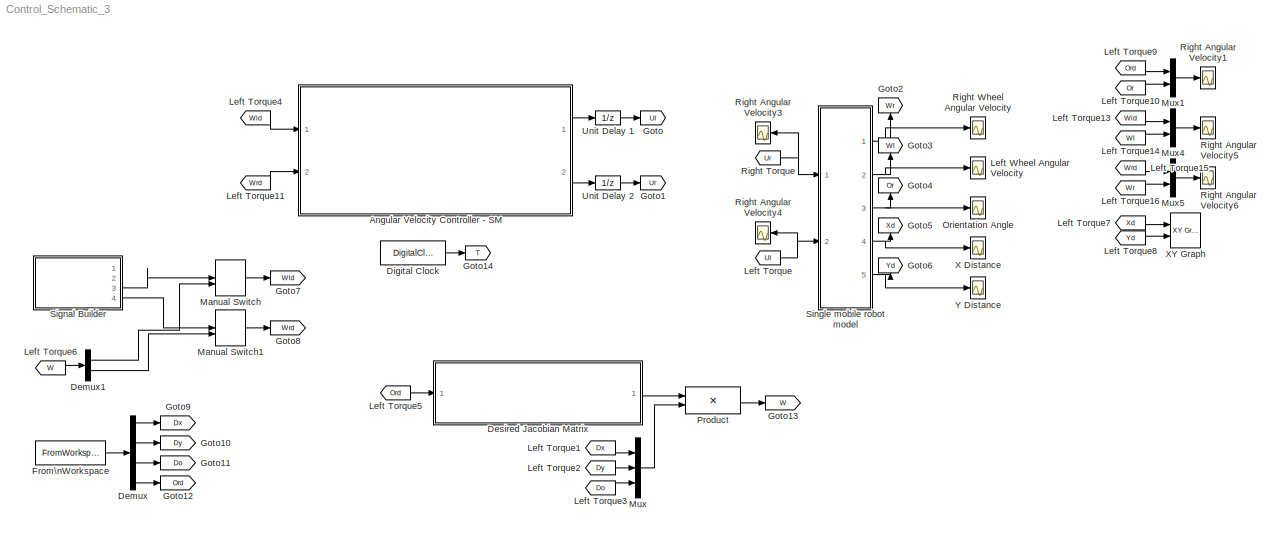
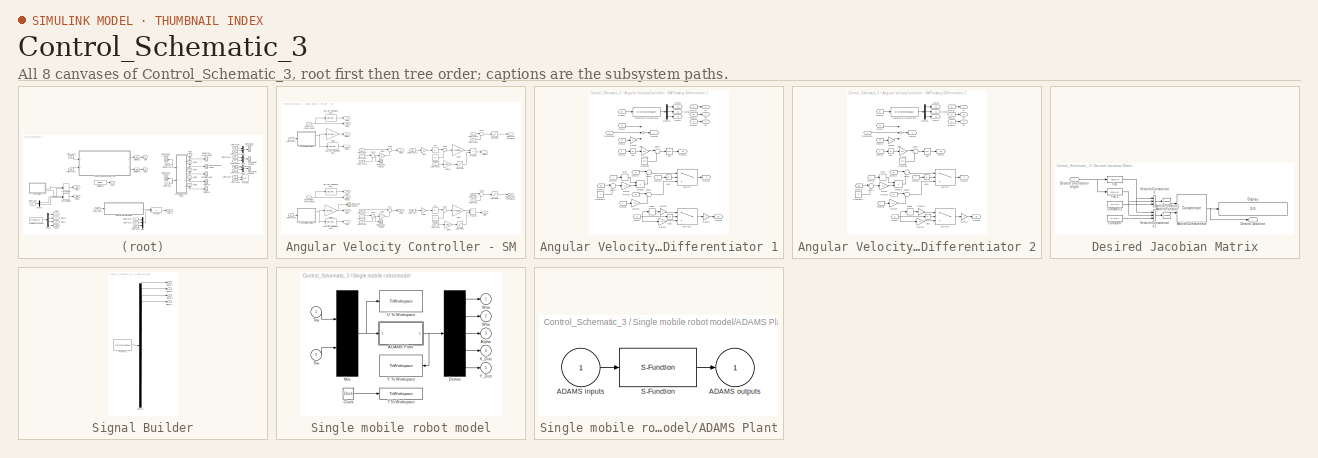
[diagram: thumbnail index - all 8 canvases of the model, root first then tree order]
MODEL Control_Schematic_3
KIND model
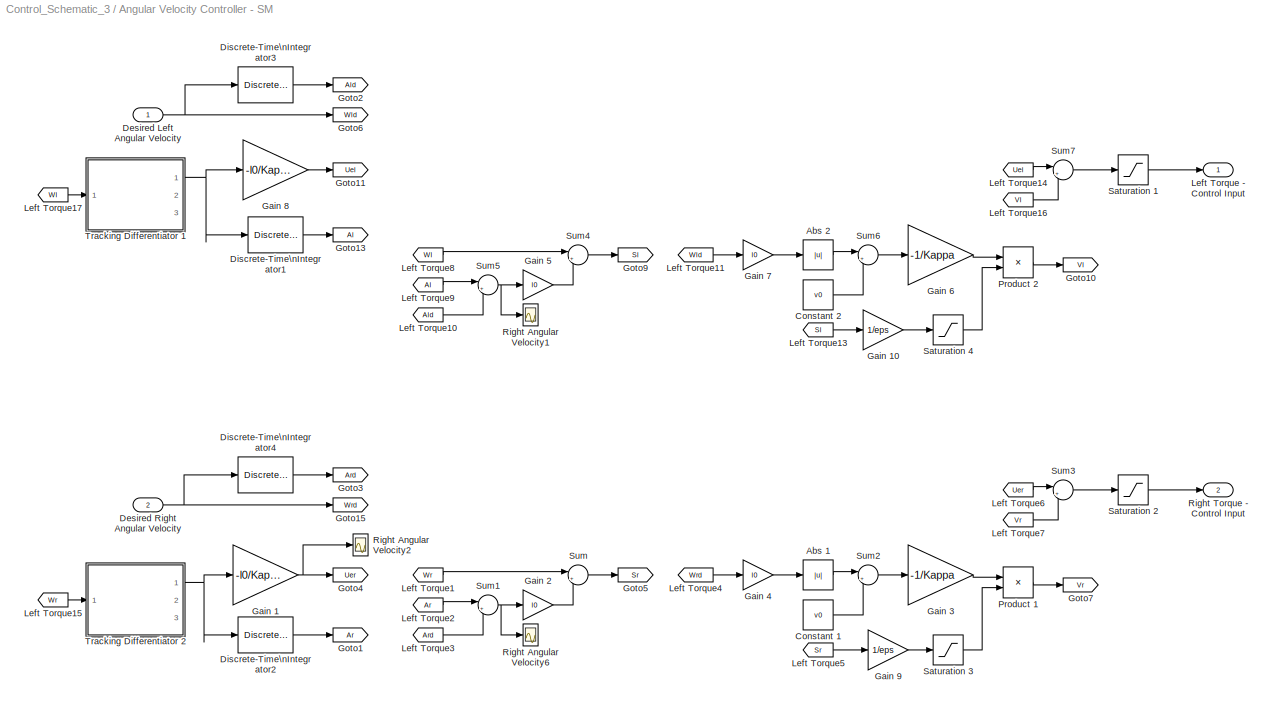
BLOCK [SubSystem] Angular Velocity Controller - SM
  Ports = [2, 2]
  RequestExecContextInheritance = off
  SID = 313
BLOCK [Abs] Angular Velocity Controller - SM/Abs 1
  SID = 868
  SaturateOnIntegerOverflow = off
BLOCK [Abs] Angular Velocity Controller - SM/Abs 2
  SID = 918
  SaturateOnIntegerOverflow = off
BLOCK [Constant] Angular Velocity Controller - SM/Constant 1
  SID = 871
  Value = v0
BLOCK [Constant] Angular Velocity Controller - SM/Constant 2
  SID = 919
  Value = v0
BLOCK [Inport] Angular Velocity Controller - SM/Desired Left Angular Velocity
  IconDisplay = Port number
  SID = 314
BLOCK [Inport] Angular Velocity Controller - SM/Desired Right Angular Velocity
  IconDisplay = Port number
  Port = 2
  SID = 315
BLOCK [DiscreteIntegrator] Angular Velocity Controller - SM/Discrete-Time\nIntegrator1
  ICPrevOutput = DiscIntNeverNeededParam
  ICPrevScaledInput = DiscIntNeverNeededParam
  IntegratorMethod = Integration: Trapezoidal
  Ports = [1, 1]
  SID = 778
  SampleTime = Ts
  gainval = 1
BLOCK [DiscreteIntegrator] Angular Velocity Controller - SM/Discrete-Time\nIntegrator2
  ICPrevOutput = DiscIntNeverNeededParam
  ICPrevScaledInput = DiscIntNeverNeededParam
  IntegratorMethod = Integration: Trapezoidal
  Ports = [1, 1]
  SID = 855
  SampleTime = Ts
  gainval = 1
BLOCK [DiscreteIntegrator] Angular Velocity Controller - SM/Discrete-Time\nIntegrator3
  ICPrevOutput = DiscIntNeverNeededParam
  ICPrevScaledInput = DiscIntNeverNeededParam
  IntegratorMethod = Integration: Trapezoidal
  Ports = [1, 1]
  SID = 782
  SampleTime = Ts
  gainval = 1
BLOCK [DiscreteIntegrator] Angular Velocity Controller - SM/Discrete-Time\nIntegrator4
  ICPrevOutput = DiscIntNeverNeededParam
  ICPrevScaledInput = DiscIntNeverNeededParam
  IntegratorMethod = Integration: Trapezoidal
  Ports = [1, 1]
  SID = 783
  SampleTime = Ts
  gainval = 1
BLOCK [Gain] Angular Velocity Controller - SM/Gain 1
  Gain = -l0/Kappa
  OutDataTypeStr = Inherit: Inherit via internal rule
  ParamDataTypeStr = Inherit: Inherit via internal rule
  SID = 854
  SaturateOnIntegerOverflow = off
BLOCK [Gain] Angular Velocity Controller - SM/Gain 10
  Gain = 1/eps
  OutDataTypeStr = Inherit: Inherit via internal rule
  ParamDataTypeStr = Inherit: Inherit via internal rule
  SID = 950
  SaturateOnIntegerOverflow = off
BLOCK [Gain] Angular Velocity Controller - SM/Gain 2
  Gain = l0
  OutDataTypeStr = Inherit: Inherit via internal rule
  ParamDataTypeStr = Inherit: Inherit via internal rule
  SID = 863
  SaturateOnIntegerOverflow = off
BLOCK [Gain] Angular Velocity Controller - SM/Gain 3
  Gain = -1/Kappa
  OutDataTypeStr = Inherit: Inherit via internal rule
  ParamDataTypeStr = Inherit: Inherit via internal rule
  SID = 865
  SaturateOnIntegerOverflow = off
BLOCK [Gain] Angular Velocity Controller - SM/Gain 4
  Gain = l0
  OutDataTypeStr = Inherit: Inherit via internal rule
  ParamDataTypeStr = Inherit: Inherit via internal rule
  SID = 869
  SaturateOnIntegerOverflow = off
BLOCK [Gain] Angular Velocity Controller - SM/Gain 5
  Gain = l0
  OutDataTypeStr = Inherit: Inherit via internal rule
  ParamDataTypeStr = Inherit: Inherit via internal rule
  SID = 920
  SaturateOnIntegerOverflow = off
BLOCK [Gain] Angular Velocity Controller - SM/Gain 6
  Gain = -1/Kappa
  OutDataTypeStr = Inherit: Inherit via internal rule
  ParamDataTypeStr = Inherit: Inherit via internal rule
  SID = 921
  SaturateOnIntegerOverflow = off
BLOCK [Gain] Angular Velocity Controller - SM/Gain 7
  Gain = l0
  OutDataTypeStr = Inherit: Inherit via internal rule
  ParamDataTypeStr = Inherit: Inherit via internal rule
  SID = 922
  SaturateOnIntegerOverflow = off
BLOCK [Gain] Angular Velocity Controller - SM/Gain 8
  Gain = -l0/Kappa
  OutDataTypeStr = Inherit: Inherit via internal rule
  ParamDataTypeStr = Inherit: Inherit via internal rule
  SID = 938
  SaturateOnIntegerOverflow = off
BLOCK [Gain] Angular Velocity Controller - SM/Gain 9
  Gain = 1/eps
  OutDataTypeStr = Inherit: Inherit via internal rule
  ParamDataTypeStr = Inherit: Inherit via internal rule
  SID = 947
  SaturateOnIntegerOverflow = off
BLOCK [Goto] Angular Velocity Controller - SM/Goto1
  GotoTag = Ar
  SID = 856
  TagVisibility = global
BLOCK [Goto] Angular Velocity Controller - SM/Goto10
  GotoTag = Vl
  SID = 924
  TagVisibility = global
BLOCK [Goto] Angular Velocity Controller - SM/Goto11
  GotoTag = Uel
  SID = 939
  TagVisibility = global
BLOCK [Goto] Angular Velocity Controller - SM/Goto13
  GotoTag = Al
  SID = 780
  TagVisibility = global
BLOCK [Goto] Angular Velocity Controller - SM/Goto15
  GotoTag = Wrd
  SID = 952
BLOCK [Goto] Angular Velocity Controller - SM/Goto2
  GotoTag = Ald
  SID = 784
  TagVisibility = global
BLOCK [Goto] Angular Velocity Controller - SM/Goto3
  GotoTag = Ard
  SID = 785
  TagVisibility = global
BLOCK [Goto] Angular Velocity Controller - SM/Goto4
  GotoTag = Uer
  SID = 857
  TagVisibility = global
BLOCK [Goto] Angular Velocity Controller - SM/Goto5
  GotoTag = Sr
  SID = 864
  TagVisibility = global
BLOCK [Goto] Angular Velocity Controller - SM/Goto6
  GotoTag = Wld
  SID = 953
BLOCK [Goto] Angular Velocity Controller - SM/Goto7
  GotoTag = Vr
  SID = 875
  TagVisibility = global
BLOCK [Goto] Angular Velocity Controller - SM/Goto9
  GotoTag = Sl
  SID = 923
  TagVisibility = global
BLOCK [Outport] Angular Velocity Controller - SM/Left Torque - Control Input
  IconDisplay = Port number
  SID = 317
BLOCK [From] Angular Velocity Controller - SM/Left Torque1
  GotoTag = Wr
  SID = 858
  TagVisibility = global
BLOCK [From] Angular Velocity Controller - SM/Left Torque10
  GotoTag = Ald
  SID = 927
  TagVisibility = global
BLOCK [From] Angular Velocity Controller - SM/Left Torque11
  GotoTag = Wld
  SID = 928
BLOCK [From] Angular Velocity Controller - SM/Left Torque13
  GotoTag = Sl
  SID = 929
  TagVisibility = global
BLOCK [From] Angular Velocity Controller - SM/Left Torque14
  GotoTag = Uel
  SID = 930
  TagVisibility = global
BLOCK [From] Angular Velocity Controller - SM/Left Torque15
  GotoTag = Wr
  SID = 955
  TagVisibility = global
BLOCK [From] Angular Velocity Controller - SM/Left Torque16
  GotoTag = Vl
  SID = 931
  TagVisibility = global
BLOCK [From] Angular Velocity Controller - SM/Left Torque17
  GotoTag = Wl
  SID = 954
  TagVisibility = global
BLOCK [From] Angular Velocity Controller - SM/Left Torque2
  GotoTag = Ar
  SID = 860
  TagVisibility = global
BLOCK [From] Angular Velocity Controller - SM/Left Torque3
  GotoTag = Ard
  SID = 862
  TagVisibility = global
BLOCK [From] Angular Velocity Controller - SM/Left Torque4
  GotoTag = Wrd
  SID = 867
BLOCK [From] Angular Velocity Controller - SM/Left Torque5
  GotoTag = Sr
  SID = 872
  TagVisibility = global
BLOCK [From] Angular Velocity Controller - SM/Left Torque6
  GotoTag = Uer
  SID = 877
  TagVisibility = global
BLOCK [From] Angular Velocity Controller - SM/Left Torque7
  GotoTag = Vr
  SID = 878
  TagVisibility = global
BLOCK [From] Angular Velocity Controller - SM/Left Torque8
  GotoTag = Wl
  SID = 925
  TagVisibility = global
BLOCK [From] Angular Velocity Controller - SM/Left Torque9
  GotoTag = Al
  SID = 926
  TagVisibility = global
BLOCK [Product] Angular Velocity Controller - SM/Product 1
  InputSameDT = off
  OutDataTypeStr = Inherit: Inherit via internal rule
  Ports = [2, 1]
  RndMeth = Floor
  SID = 874
  SaturateOnIntegerOverflow = off
BLOCK [Product] Angular Velocity Controller - SM/Product 2
  InputSameDT = off
  OutDataTypeStr = Inherit: Inherit via internal rule
  Ports = [2, 1]
  RndMeth = Floor
  SID = 932
  SaturateOnIntegerOverflow = off
BLOCK [Scope] Angular Velocity Controller - SM/Right Angular Velocity1
  Floating = off
  LimitDataPoints = off
  NumInputPorts = 1
  Ports = [1]
  SID = 945
  SaveName = ScopeData6
  ShowLegends = off
  YMax = 1
  YMin = -1
BLOCK [Scope] Angular Velocity Controller - SM/Right Angular Velocity2
  Floating = off
  LimitDataPoints = off
  NumInputPorts = 1
  Ports = [1]
  SID = 956
  SaveName = ScopeData11
  ShowLegends = off
  YMax = 1
  YMin = -1
BLOCK [Scope] Angular Velocity Controller - SM/Right Angular Velocity6
  Floating = off
  LimitDataPoints = off
  NumInputPorts = 1
  Ports = [1]
  SID = 944
  SaveName = ScopeData5
  ShowLegends = off
  YMax = 1
  YMin = -1
BLOCK [Outport] Angular Velocity Controller - SM/Right Torque - Control Input
  IconDisplay = Port number
  Port = 2
  SID = 319
BLOCK [Saturate] Angular Velocity Controller - SM/Saturation 1
  InputPortMap = u0
  LowerLimit = -20
  Ports = [1, 1]
  SID = 942
  UpperLimit = 20
BLOCK [Saturate] Angular Velocity Controller - SM/Saturation 2
  InputPortMap = u0
  LowerLimit = -20
  Ports = [1, 1]
  SID = 943
  UpperLimit = 20
BLOCK [Saturate] Angular Velocity Controller - SM/Saturation 3
  InputPortMap = u0
  LowerLimit = -1
  Ports = [1, 1]
  SID = 949
  UpperLimit = 1
BLOCK [Saturate] Angular Velocity Controller - SM/Saturation 4
  InputPortMap = u0
  LowerLimit = -1
  Ports = [1, 1]
  SID = 951
  UpperLimit = 1
BLOCK [Sum] Angular Velocity Controller - SM/Sum
  IconShape = round
  InputSameDT = off
  Inputs = |++
  OutDataTypeStr = Inherit: Inherit via internal rule
  Ports = [2, 1]
  SID = 859
  SaturateOnIntegerOverflow = off
BLOCK [Sum] Angular Velocity Controller - SM/Sum1
  IconShape = round
  InputSameDT = off
  Inputs = |+-
  OutDataTypeStr = Inherit: Inherit via internal rule
  Ports = [2, 1]
  SID = 861
  SaturateOnIntegerOverflow = off
BLOCK [Sum] Angular Velocity Controller - SM/Sum2
  IconShape = round
  InputSameDT = off
  Inputs = |++
  OutDataTypeStr = Inherit: Inherit via internal rule
  Ports = [2, 1]
  SID = 870
  SaturateOnIntegerOverflow = off
BLOCK [Sum] Angular Velocity Controller - SM/Sum3
  IconShape = round
  InputSameDT = off
  Inputs = |++
  OutDataTypeStr = Inherit: Inherit via internal rule
  Ports = [2, 1]
  SID = 876
  SaturateOnIntegerOverflow = off
BLOCK [Sum] Angular Velocity Controller - SM/Sum4
  IconShape = round
  InputSameDT = off
  Inputs = |++
  OutDataTypeStr = Inherit: Inherit via internal rule
  Ports = [2, 1]
  SID = 934
  SaturateOnIntegerOverflow = off
BLOCK [Sum] Angular Velocity Controller - SM/Sum5
  IconShape = round
  InputSameDT = off
  Inputs = |+-
  OutDataTypeStr = Inherit: Inherit via internal rule
  Ports = [2, 1]
  SID = 935
  SaturateOnIntegerOverflow = off
BLOCK [Sum] Angular Velocity Controller - SM/Sum6
  IconShape = round
  InputSameDT = off
  Inputs = |++
  OutDataTypeStr = Inherit: Inherit via internal rule
  Ports = [2, 1]
  SID = 936
  SaturateOnIntegerOverflow = off
BLOCK [Sum] Angular Velocity Controller - SM/Sum7
  IconShape = round
  InputSameDT = off
  Inputs = |++
  OutDataTypeStr = Inherit: Inherit via internal rule
  Ports = [2, 1]
  SID = 937
  SaturateOnIntegerOverflow = off
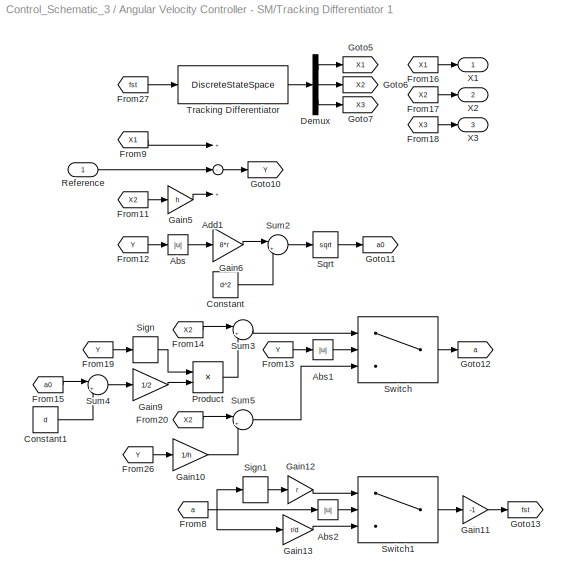
BLOCK [SubSystem] Angular Velocity Controller - SM/Tracking Differentiator 1
  Ports = [1, 3]
  RequestExecContextInheritance = off
  SID = 47
BLOCK [Abs] Angular Velocity Controller - SM/Tracking Differentiator 1/Abs
  SID = 49
  SaturateOnIntegerOverflow = off
BLOCK [Abs] Angular Velocity Controller - SM/Tracking Differentiator 1/Abs1
  SID = 50
  SaturateOnIntegerOverflow = off
BLOCK [Abs] Angular Velocity Controller - SM/Tracking Differentiator 1/Abs2
  SID = 51
  SaturateOnIntegerOverflow = off
BLOCK [Sum] Angular Velocity Controller - SM/Tracking Differentiator 1/Add1
  InputSameDT = off
  Inputs = +-+
  OutDataTypeStr = Inherit: Inherit via internal rule
  Ports = [3, 1]
  SID = 52
  SaturateOnIntegerOverflow = off
BLOCK [Constant] Angular Velocity Controller - SM/Tracking Differentiator 1/Constant
  SID = 53
  Value = d^2
BLOCK [Constant] Angular Velocity Controller - SM/Tracking Differentiator 1/Constant1
  SID = 54
  Value = d
BLOCK [Demux] Angular Velocity Controller - SM/Tracking Differentiator 1/Demux
  DisplayOption = bar
  Outputs = 3
  Ports = [1, 3]
  SID = 55
BLOCK [From] Angular Velocity Controller - SM/Tracking Differentiator 1/From11
  GotoTag = X2
  SID = 56
BLOCK [From] Angular Velocity Controller - SM/Tracking Differentiator 1/From12
  GotoTag = Y
  SID = 57
BLOCK [From] Angular Velocity Controller - SM/Tracking Differentiator 1/From13
  GotoTag = Y
  SID = 58
BLOCK [From] Angular Velocity Controller - SM/Tracking Differentiator 1/From14
  GotoTag = X2
  SID = 59
BLOCK [From] Angular Velocity Controller - SM/Tracking Differentiator 1/From15
  GotoTag = a0
  SID = 60
BLOCK [From] Angular Velocity Controller - SM/Tracking Differentiator 1/From16
  GotoTag = X1
  SID = 61
BLOCK [From] Angular Velocity Controller - SM/Tracking Differentiator 1/From17
  GotoTag = X2
  SID = 62
BLOCK [From] Angular Velocity Controller - SM/Tracking Differentiator 1/From18
  GotoTag = X3
  SID = 63
BLOCK [From] Angular Velocity Controller - SM/Tracking Differentiator 1/From19
  GotoTag = Y
  SID = 64
BLOCK [From] Angular Velocity Controller - SM/Tracking Differentiator 1/From20
  GotoTag = X2
  SID = 65
BLOCK [From] Angular Velocity Controller - SM/Tracking Differentiator 1/From26
  GotoTag = Y
  SID = 66
BLOCK [From] Angular Velocity Controller - SM/Tracking Differentiator 1/From27
  GotoTag = fst
  SID = 67
BLOCK [From] Angular Velocity Controller - SM/Tracking Differentiator 1/From8
  GotoTag = a
  SID = 68
BLOCK [From] Angular Velocity Controller - SM/Tracking Differentiator 1/From9
  GotoTag = X1
  SID = 69
BLOCK [Gain] Angular Velocity Controller - SM/Tracking Differentiator 1/Gain10
  Gain = 1/h
  OutDataTypeStr = Inherit: Inherit via internal rule
  ParamDataTypeStr = Inherit: Inherit via internal rule
  SID = 70
  SaturateOnIntegerOverflow = off
BLOCK [Gain] Angular Velocity Controller - SM/Tracking Differentiator 1/Gain11
  Gain = -1
  OutDataTypeStr = Inherit: Inherit via internal rule
  ParamDataTypeStr = Inherit: Inherit via internal rule
  SID = 71
  SaturateOnIntegerOverflow = off
BLOCK [Gain] Angular Velocity Controller - SM/Tracking Differentiator 1/Gain12
  Gain = r
  OutDataTypeStr = Inherit: Inherit via internal rule
  ParamDataTypeStr = Inherit: Inherit via internal rule
  SID = 72
  SaturateOnIntegerOverflow = off
BLOCK [Gain] Angular Velocity Controller - SM/Tracking Differentiator 1/Gain13
  Gain = r/d
  OutDataTypeStr = Inherit: Inherit via internal rule
  ParamDataTypeStr = Inherit: Inherit via internal rule
  SID = 73
  SaturateOnIntegerOverflow = off
BLOCK [Gain] Angular Velocity Controller - SM/Tracking Differentiator 1/Gain5
  Gain = h
  OutDataTypeStr = Inherit: Inherit via internal rule
  ParamDataTypeStr = Inherit: Inherit via internal rule
  SID = 74
  SaturateOnIntegerOverflow = off
BLOCK [Gain] Angular Velocity Controller - SM/Tracking Differentiator 1/Gain6
  Gain = 8*r
  OutDataTypeStr = Inherit: Inherit via internal rule
  ParamDataTypeStr = Inherit: Inherit via internal rule
  SID = 75
  SaturateOnIntegerOverflow = off
BLOCK [Gain] Angular Velocity Controller - SM/Tracking Differentiator 1/Gain9
  Gain = 1/2
  OutDataTypeStr = Inherit: Inherit via internal rule
  ParamDataTypeStr = Inherit: Inherit via internal rule
  SID = 76
  SaturateOnIntegerOverflow = off
BLOCK [Goto] Angular Velocity Controller - SM/Tracking Differentiator 1/Goto10
  GotoTag = Y
  SID = 77
BLOCK [Goto] Angular Velocity Controller - SM/Tracking Differentiator 1/Goto11
  GotoTag = a0
  SID = 78
BLOCK [Goto] Angular Velocity Controller - SM/Tracking Differentiator 1/Goto12
  GotoTag = a
  SID = 79
BLOCK [Goto] Angular Velocity Controller - SM/Tracking Differentiator 1/Goto13
  GotoTag = fst
  SID = 80
BLOCK [Goto] Angular Velocity Controller - SM/Tracking Differentiator 1/Goto5
  GotoTag = X1
  SID = 81
BLOCK [Goto] Angular Velocity Controller - SM/Tracking Differentiator 1/Goto6
  GotoTag = X2
  SID = 82
BLOCK [Goto] Angular Velocity Controller - SM/Tracking Differentiator 1/Goto7
  GotoTag = X3
  SID = 83
BLOCK [Product] Angular Velocity Controller - SM/Tracking Differentiator 1/Product
  InputSameDT = off
  OutDataTypeStr = Inherit: Inherit via internal rule
  Ports = [2, 1]
  RndMeth = Floor
  SID = 84
  SaturateOnIntegerOverflow = off
BLOCK [Inport] Angular Velocity Controller - SM/Tracking Differentiator 1/Reference
  IconDisplay = Port number
  SID = 48
BLOCK [Signum] Angular Velocity Controller - SM/Tracking Differentiator 1/Sign
  SID = 85
BLOCK [Signum] Angular Velocity Controller - SM/Tracking Differentiator 1/Sign1
  SID = 86
BLOCK [Sqrt] Angular Velocity Controller - SM/Tracking Differentiator 1/Sqrt
  SID = 87
BLOCK [Sum] Angular Velocity Controller - SM/Tracking Differentiator 1/Sum2
  IconShape = round
  InputSameDT = off
  Inputs = |++
  OutDataTypeStr = Inherit: Inherit via internal rule
  Ports = [2, 1]
  SID = 88
  SaturateOnIntegerOverflow = off
BLOCK [Sum] Angular Velocity Controller - SM/Tracking Differentiator 1/Sum3
  IconShape = round
  InputSameDT = off
  Inputs = |++
  OutDataTypeStr = Inherit: Inherit via internal rule
  Ports = [2, 1]
  SID = 89
  SaturateOnIntegerOverflow = off
BLOCK [Sum] Angular Velocity Controller - SM/Tracking Differentiator 1/Sum4
  IconShape = round
  InputSameDT = off
  Inputs = |+-
  OutDataTypeStr = Inherit: Inherit via internal rule
  Ports = [2, 1]
  SID = 90
  SaturateOnIntegerOverflow = off
BLOCK [Sum] Angular Velocity Controller - SM/Tracking Differentiator 1/Sum5
  IconShape = round
  InputSameDT = off
  Inputs = |++
  OutDataTypeStr = Inherit: Inherit via internal rule
  Ports = [2, 1]
  SID = 91
  SaturateOnIntegerOverflow = off
BLOCK [Switch] Angular Velocity Controller - SM/Tracking Differentiator 1/Switch
  Criteria = u2 > Threshold
  InputSameDT = off
  SID = 92
  SaturateOnIntegerOverflow = off
  Threshold = d0
BLOCK [Switch] Angular Velocity Controller - SM/Tracking Differentiator 1/Switch1
  Criteria = u2 > Threshold
  InputSameDT = off
  SID = 93
  SaturateOnIntegerOverflow = off
  Threshold = d
BLOCK [DiscreteStateSpace] Angular Velocity Controller - SM/Tracking Differentiator 1/Tracking Differentiator
  A = TD.a
  B = TD.b
  C = TD.c
  D = TD.d
  SID = 94
  SampleTime = Ts
BLOCK [Outport] Angular Velocity Controller - SM/Tracking Differentiator 1/X1
  IconDisplay = Port number
  SID = 95
BLOCK [Outport] Angular Velocity Controller - SM/Tracking Differentiator 1/X2
  IconDisplay = Port number
  Port = 2
  SID = 96
BLOCK [Outport] Angular Velocity Controller - SM/Tracking Differentiator 1/X3
  IconDisplay = Port number
  Port = 3
  SID = 97
BLOCK [SubSystem] Angular Velocity Controller - SM/Tracking Differentiator 2
  Ports = [1, 3]
  RequestExecContextInheritance = off
  SID = 186
BLOCK [Abs] Angular Velocity Controller - SM/Tracking Differentiator 2/Abs
  SID = 188
  SaturateOnIntegerOverflow = off
BLOCK [Abs] Angular Velocity Controller - SM/Tracking Differentiator 2/Abs1
  SID = 189
  SaturateOnIntegerOverflow = off
BLOCK [Abs] Angular Velocity Controller - SM/Tracking Differentiator 2/Abs2
  SID = 190
  SaturateOnIntegerOverflow = off
BLOCK [Sum] Angular Velocity Controller - SM/Tracking Differentiator 2/Add1
  InputSameDT = off
  Inputs = +-+
  OutDataTypeStr = Inherit: Inherit via internal rule
  Ports = [3, 1]
  SID = 191
  SaturateOnIntegerOverflow = off
BLOCK [Constant] Angular Velocity Controller - SM/Tracking Differentiator 2/Constant
  SID = 192
  Value = d^2
BLOCK [Constant] Angular Velocity Controller - SM/Tracking Differentiator 2/Constant1
  SID = 193
  Value = d
BLOCK [Demux] Angular Velocity Controller - SM/Tracking Differentiator 2/Demux
  DisplayOption = bar
  Outputs = 3
  Ports = [1, 3]
  SID = 194
BLOCK [From] Angular Velocity Controller - SM/Tracking Differentiator 2/From11
  GotoTag = X2
  SID = 195
BLOCK [From] Angular Velocity Controller - SM/Tracking Differentiator 2/From12
  GotoTag = Y
  SID = 196
BLOCK [From] Angular Velocity Controller - SM/Tracking Differentiator 2/From13
  GotoTag = Y
  SID = 197
BLOCK [From] Angular Velocity Controller - SM/Tracking Differentiator 2/From14
  GotoTag = X2
  SID = 198
BLOCK [From] Angular Velocity Controller - SM/Tracking Differentiator 2/From15
  GotoTag = a0
  SID = 199
BLOCK [From] Angular Velocity Controller - SM/Tracking Differentiator 2/From16
  GotoTag = X1
  SID = 200
BLOCK [From] Angular Velocity Controller - SM/Tracking Differentiator 2/From17
  GotoTag = X2
  SID = 201
BLOCK [From] Angular Velocity Controller - SM/Tracking Differentiator 2/From18
  GotoTag = X3
  SID = 202
BLOCK [From] Angular Velocity Controller - SM/Tracking Differentiator 2/From19
  GotoTag = Y
  SID = 203
BLOCK [From] Angular Velocity Controller - SM/Tracking Differentiator 2/From20
  GotoTag = X2
  SID = 204
BLOCK [From] Angular Velocity Controller - SM/Tracking Differentiator 2/From26
  GotoTag = Y
  SID = 205
BLOCK [From] Angular Velocity Controller - SM/Tracking Differentiator 2/From27
  GotoTag = fst
  SID = 206
BLOCK [From] Angular Velocity Controller - SM/Tracking Differentiator 2/From8
  GotoTag = a
  SID = 207
BLOCK [From] Angular Velocity Controller - SM/Tracking Differentiator 2/From9
  GotoTag = X1
  SID = 208
BLOCK [Gain] Angular Velocity Controller - SM/Tracking Differentiator 2/Gain10
  Gain = 1/h
  OutDataTypeStr = Inherit: Inherit via internal rule
  ParamDataTypeStr = Inherit: Inherit via internal rule
  SID = 209
  SaturateOnIntegerOverflow = off
BLOCK [Gain] Angular Velocity Controller - SM/Tracking Differentiator 2/Gain11
  Gain = -1
  OutDataTypeStr = Inherit: Inherit via internal rule
  ParamDataTypeStr = Inherit: Inherit via internal rule
  SID = 210
  SaturateOnIntegerOverflow = off
BLOCK [Gain] Angular Velocity Controller - SM/Tracking Differentiator 2/Gain12
  Gain = r
  OutDataTypeStr = Inherit: Inherit via internal rule
  ParamDataTypeStr = Inherit: Inherit via internal rule
  SID = 211
  SaturateOnIntegerOverflow = off
BLOCK [Gain] Angular Velocity Controller - SM/Tracking Differentiator 2/Gain13
  Gain = r/d
  OutDataTypeStr = Inherit: Inherit via internal rule
  ParamDataTypeStr = Inherit: Inherit via internal rule
  SID = 212
  SaturateOnIntegerOverflow = off
BLOCK [Gain] Angular Velocity Controller - SM/Tracking Differentiator 2/Gain5
  Gain = h
  OutDataTypeStr = Inherit: Inherit via internal rule
  ParamDataTypeStr = Inherit: Inherit via internal rule
  SID = 213
  SaturateOnIntegerOverflow = off
BLOCK [Gain] Angular Velocity Controller - SM/Tracking Differentiator 2/Gain6
  Gain = 8*r
  OutDataTypeStr = Inherit: Inherit via internal rule
  ParamDataTypeStr = Inherit: Inherit via internal rule
  SID = 214
  SaturateOnIntegerOverflow = off
BLOCK [Gain] Angular Velocity Controller - SM/Tracking Differentiator 2/Gain9
  Gain = 1/2
  OutDataTypeStr = Inherit: Inherit via internal rule
  ParamDataTypeStr = Inherit: Inherit via internal rule
  SID = 215
  SaturateOnIntegerOverflow = off
BLOCK [Goto] Angular Velocity Controller - SM/Tracking Differentiator 2/Goto10
  GotoTag = Y
  SID = 216
BLOCK [Goto] Angular Velocity Controller - SM/Tracking Differentiator 2/Goto11
  GotoTag = a0
  SID = 217
BLOCK [Goto] Angular Velocity Controller - SM/Tracking Differentiator 2/Goto12
  GotoTag = a
  SID = 218
BLOCK [Goto] Angular Velocity Controller - SM/Tracking Differentiator 2/Goto13
  GotoTag = fst
  SID = 219
BLOCK [Goto] Angular Velocity Controller - SM/Tracking Differentiator 2/Goto5
  GotoTag = X1
  SID = 220
BLOCK [Goto] Angular Velocity Controller - SM/Tracking Differentiator 2/Goto6
  GotoTag = X2
  SID = 221
BLOCK [Goto] Angular Velocity Controller - SM/Tracking Differentiator 2/Goto7
  GotoTag = X3
  SID = 222
BLOCK [Product] Angular Velocity Controller - SM/Tracking Differentiator 2/Product
  InputSameDT = off
  OutDataTypeStr = Inherit: Inherit via internal rule
  Ports = [2, 1]
  RndMeth = Floor
  SID = 223
  SaturateOnIntegerOverflow = off
BLOCK [Inport] Angular Velocity Controller - SM/Tracking Differentiator 2/Reference
  IconDisplay = Port number
  SID = 187
BLOCK [Signum] Angular Velocity Controller - SM/Tracking Differentiator 2/Sign
  SID = 224
BLOCK [Signum] Angular Velocity Controller - SM/Tracking Differentiator 2/Sign1
  SID = 225
BLOCK [Sqrt] Angular Velocity Controller - SM/Tracking Differentiator 2/Sqrt
  SID = 226
BLOCK [Sum] Angular Velocity Controller - SM/Tracking Differentiator 2/Sum2
  IconShape = round
  InputSameDT = off
  Inputs = |++
  OutDataTypeStr = Inherit: Inherit via internal rule
  Ports = [2, 1]
  SID = 227
  SaturateOnIntegerOverflow = off
BLOCK [Sum] Angular Velocity Controller - SM/Tracking Differentiator 2/Sum3
  IconShape = round
  InputSameDT = off
  Inputs = |++
  OutDataTypeStr = Inherit: Inherit via internal rule
  Ports = [2, 1]
  SID = 228
  SaturateOnIntegerOverflow = off
BLOCK [Sum] Angular Velocity Controller - SM/Tracking Differentiator 2/Sum4
  IconShape = round
  InputSameDT = off
  Inputs = |+-
  OutDataTypeStr = Inherit: Inherit via internal rule
  Ports = [2, 1]
  SID = 229
  SaturateOnIntegerOverflow = off
BLOCK [Sum] Angular Velocity Controller - SM/Tracking Differentiator 2/Sum5
  IconShape = round
  InputSameDT = off
  Inputs = |++
  OutDataTypeStr = Inherit: Inherit via internal rule
  Ports = [2, 1]
  SID = 230
  SaturateOnIntegerOverflow = off
BLOCK [Switch] Angular Velocity Controller - SM/Tracking Differentiator 2/Switch
  Criteria = u2 > Threshold
  InputSameDT = off
  SID = 231
  SaturateOnIntegerOverflow = off
  Threshold = d0
BLOCK [Switch] Angular Velocity Controller - SM/Tracking Differentiator 2/Switch1
  Criteria = u2 > Threshold
  InputSameDT = off
  SID = 232
  SaturateOnIntegerOverflow = off
  Threshold = d
BLOCK [DiscreteStateSpace] Angular Velocity Controller - SM/Tracking Differentiator 2/Tracking Differentiator
  A = TD.a
  B = TD.b
  C = TD.c
  D = TD.d
  SID = 233
  SampleTime = Ts
BLOCK [Outport] Angular Velocity Controller - SM/Tracking Differentiator 2/X1
  IconDisplay = Port number
  SID = 234
BLOCK [Outport] Angular Velocity Controller - SM/Tracking Differentiator 2/X2
  IconDisplay = Port number
  Port = 2
  SID = 235
BLOCK [Outport] Angular Velocity Controller - SM/Tracking Differentiator 2/X3
  IconDisplay = Port number
  Port = 3
  SID = 236
BLOCK [Demux] Demux
  DisplayOption = bar
  Ports = [1, 4]
  SID = 358
BLOCK [Demux] Demux1
  DisplayOption = bar
  Outputs = 2
  Ports = [1, 2]
  SID = 387
BLOCK [SubSystem] Desired Jacobian Matrix
  Ports = [1, 1]
  RequestExecContextInheritance = off
  SID = 380
BLOCK [Constant] Desired Jacobian Matrix/Constant
  SID = 371
  Value = b/(2*R)
BLOCK [Constant] Desired Jacobian Matrix/Constant1
  SID = 372
  Value = -b/(2*R)
BLOCK [Outport] Desired Jacobian Matrix/Desired Jacobian
  IconDisplay = Port number
  SID = 382
BLOCK [Inport] Desired Jacobian Matrix/Desired orientation angle
  IconDisplay = Port number
  SID = 381
BLOCK [Display] Desired Jacobian Matrix/Display
  Decimation = 1
  Ports = [1]
  SID = 376
BLOCK [Fcn] Desired Jacobian Matrix/Fcn
  Expr = -sin(u)/R
  SID = 369
BLOCK [Fcn] Desired Jacobian Matrix/Fcn1
  Expr = cos(u)/R
  SID = 370
BLOCK [Math] Desired Jacobian Matrix/Math\nFunction
  Operator = transpose
  Ports = [1, 1]
  SID = 377
BLOCK [Math] Desired Jacobian Matrix/Math\nFunction1
  Operator = transpose
  Ports = [1, 1]
  SID = 378
BLOCK [Concatenate] Desired Jacobian Matrix/Matrix\nConcatenate
  Mode = Multidimensional array
  Ports = [2, 1]
  SID = 373
BLOCK [Concatenate] Desired Jacobian Matrix/Vector\nConcatenate
  NumInputs = 3
  Ports = [3, 1]
  SID = 374
BLOCK [Concatenate] Desired Jacobian Matrix/Vector\nConcatenate1
  NumInputs = 3
  Ports = [3, 1]
  SID = 375
BLOCK [DigitalClock] Digital Clock
  SID = 755
  SampleTime = Ts
BLOCK [FromWorkspace] From\nWorkspace
  SID = 357
  SampleTime = Ts
  VariableName = desired_path
  ZeroCross = on
BLOCK [Goto] Goto
  GotoTag = Ul
  SID = 28
  TagVisibility = global
BLOCK [Goto] Goto1
  GotoTag = Ur
  SID = 181
  TagVisibility = global
BLOCK [Goto] Goto10
  GotoTag = Dy
  SID = 360
  TagVisibility = global
BLOCK [Goto] Goto11
  GotoTag = Do
  SID = 361
  TagVisibility = global
BLOCK [Goto] Goto12
  GotoTag = Ord
  SID = 362
  TagVisibility = global
BLOCK [Goto] Goto13
  GotoTag = W
  SID = 385
  TagVisibility = global
BLOCK [Goto] Goto14
  GotoTag = T
  SID = 756
  TagVisibility = global
BLOCK [Goto] Goto2
  GotoTag = Wr
  SID = 30
  TagVisibility = global
BLOCK [Goto] Goto3
  GotoTag = Wl
  SID = 31
  TagVisibility = global
BLOCK [Goto] Goto4
  GotoTag = Or
  SID = 32
  TagVisibility = global
BLOCK [Goto] Goto5
  GotoTag = Xd
  SID = 33
  TagVisibility = global
BLOCK [Goto] Goto6
  GotoTag = Yd
  SID = 34
  TagVisibility = global
BLOCK [Goto] Goto7
  GotoTag = Wld
  SID = 98
  TagVisibility = global
BLOCK [Goto] Goto8
  GotoTag = Wrd
  SID = 100
  TagVisibility = global
BLOCK [Goto] Goto9
  GotoTag = Dx
  SID = 359
  TagVisibility = global
BLOCK [From] Left Torque
  GotoTag = Ul
  SID = 25
  TagVisibility = global
BLOCK [From] Left Torque1
  GotoTag = Dx
  SID = 363
  TagVisibility = global
BLOCK [From] Left Torque10
  GotoTag = Or
  SID = 762
  TagVisibility = global
BLOCK [From] Left Torque11
  GotoTag = Wrd
  SID = 183
  TagVisibility = global
BLOCK [From] Left Torque13
  GotoTag = Wld
  SID = 272
  TagVisibility = global
BLOCK [From] Left Torque14
  GotoTag = Wl
  SID = 273
  TagVisibility = global
BLOCK [From] Left Torque15
  GotoTag = Wrd
  SID = 275
  TagVisibility = global
BLOCK [From] Left Torque16
  GotoTag = Wr
  SID = 276
  TagVisibility = global
BLOCK [From] Left Torque2
  GotoTag = Dy
  SID = 364
  TagVisibility = global
BLOCK [From] Left Torque3
  GotoTag = Do
  SID = 365
  TagVisibility = global
BLOCK [From] Left Torque4
  GotoTag = Wld
  SID = 99
  TagVisibility = global
BLOCK [From] Left Torque5
  GotoTag = Ord
  SID = 366
  TagVisibility = global
BLOCK [From] Left Torque6
  GotoTag = W
  SID = 386
  TagVisibility = global
BLOCK [From] Left Torque7
  GotoTag = Xd
  SID = 461
  TagVisibility = global
BLOCK [From] Left Torque8
  GotoTag = Yd
  SID = 462
  TagVisibility = global
BLOCK [From] Left Torque9
  GotoTag = Ord
  SID = 761
  TagVisibility = global
BLOCK [Scope] Left Wheel Angular Velocity
  Floating = off
  LimitDataPoints = off
  NumInputPorts = 1
  Ports = [1]
  SID = 2
  SaveName = ScopeData2
  ShowLegends = off
BLOCK [ManualSwitch] Manual Switch
  CurrentSetting = 0
  SID = 355
BLOCK [ManualSwitch] Manual Switch1
  CurrentSetting = 0
  SID = 356
BLOCK [Mux] Mux
  DisplayOption = bar
  Inputs = 3
  Ports = [3, 1]
  SID = 367
BLOCK [Mux] Mux1
  DisplayOption = bar
  Inputs = 2
  Ports = [2, 1]
  SID = 763
BLOCK [Mux] Mux4
  DisplayOption = bar
  Inputs = 2
  Ports = [2, 1]
  SID = 271
BLOCK [Mux] Mux5
  DisplayOption = bar
  Inputs = 2
  Ports = [2, 1]
  SID = 277
BLOCK [Scope] Orientation Angle
  Floating = off
  LimitDataPoints = off
  NumInputPorts = 1
  Ports = [1]
  SID = 1
  SaveName = ScopeData1
  ShowLegends = off
  YMax = 4
  YMin = -4
BLOCK [Product] Product
  InputSameDT = off
  Multiplication = Matrix(*)
  OutDataTypeStr = Inherit: Inherit via internal rule
  Ports = [2, 1]
  RndMeth = Floor
  SID = 383
  SaturateOnIntegerOverflow = off
BLOCK [Scope] Right Angular Velocity1
  Floating = off
  LimitDataPoints = off
  NumInputPorts = 1
  Ports = [1]
  SID = 764
  SaveName = ScopeData27
  ShowLegends = off
  YMax = 3
  YMin = -3
BLOCK [Scope] Right Angular Velocity3
  Floating = off
  LimitDataPoints = off
  NumInputPorts = 1
  Ports = [1]
  SID = 269
  SaveName = ScopeData7
  ShowLegends = off
  YMax = 25
  YMin = -25
  ZoomMode = xonly
BLOCK [Scope] Right Angular Velocity4
  Floating = off
  LimitDataPoints = off
  NumInputPorts = 1
  Ports = [1]
  SID = 270
  SaveName = ScopeData8
  ShowLegends = off
  YMax = 25
  YMin = -25
BLOCK [Scope] Right Angular Velocity5
  Floating = off
  LimitDataPoints = off
  NumInputPorts = 1
  Ports = [1]
  SID = 274
  SaveName = ScopeData9
  ShowLegends = off
  YMax = 1
  YMin = -1
BLOCK [Scope] Right Angular Velocity6
  Floating = off
  LimitDataPoints = off
  NumInputPorts = 1
  Ports = [1]
  SID = 278
  SaveName = ScopeData10
  ShowLegends = off
  YMax = 1
  YMin = -1
BLOCK [From] Right Torque
  GotoTag = Ur
  SID = 24
  TagVisibility = global
BLOCK [Scope] Right Wheel Angular Velocity
  Floating = off
  LimitDataPoints = off
  NumInputPorts = 1
  Ports = [1]
  SID = 3
  SaveName = ScopeData3
  ShowLegends = off
  YMax = 1
  YMin = -1
  ZoomMode = xonly
BLOCK [SubSystem] Signal Builder
  ClipboardFcn = sigbuilder_block('clipboard');
  CloseFcn = sigbuilder_block('close');
  ContinueFcn = sigbuilder_block('continue');
  CopyFcn = sigbuilder_block('copy');
  DeleteFcn = sigbuilder_block('delete');
  LoadFcn = sigbuilder_block('load');
  MaskHideContents = on
  ModelCloseFcn = sigbuilder_block('modelClose');
  NameChangeFcn = sigbuilder_block('namechange');
  OpenFcn = sigbuilder_block('open',[437.25 118.5 550.5 394.5 ]);
  PauseFcn = sigbuilder_block('pause');
  Ports = [0, 4]
  PreSaveFcn = sigbuilder_block('preSave');
  RequestExecContextInheritance = off
  SID = 320
  StartFcn = sigbuilder_block('start');
  StopFcn = sigbuilder_block('stop');
  Tag = STV Subsys
BLOCK [Demux] Signal Builder/Demux
  Ports = [1, 4]
  SID = 320:1
  Tag = STV Demux
BLOCK [FromWorkspace] Signal Builder/FromWs
  SID = 320:2
  SampleTime = 0
  SigBuilderData = DataTag0
  Tag = STV FromWs
  VariableName = tuvar
  VnvData = DataTag1
  ZeroCross = on
BLOCK [Outport] Signal Builder/Signal 1
  IconDisplay = Port number
  SID = 320:4
  Tag = STV Outport
BLOCK [Outport] Signal Builder/Signal 2
  IconDisplay = Port number
  Port = 2
  SID = 320:5
  Tag = STV Outport
BLOCK [Outport] Signal Builder/Signal 3
  IconDisplay = Port number
  Port = 3
  SID = 320:6
  Tag = STV Outport
BLOCK [Outport] Signal Builder/Signal 4
  IconDisplay = Port number
  Port = 4
  SID = 320:7
  Tag = STV Outport
BLOCK [SubSystem] Single mobile robot model
  Ports = [2, 5]
  RequestExecContextInheritance = off
  SID = 613
  ShowPortLabels = none
BLOCK [SubSystem] Single mobile robot model/ADAMS Plant
  InitFcn = clear mex
  LoadFcn = %check based on dialog box setting for when setting by popup menu                                             \nif exist('ADAMS_solver_type')                                                                                 \n  if strcmp(ADAMS_solver_type,'C++')                                                                          \n    set_param(gcb,'exetyp','C++');                              ...<+3523ch>
  OpenFcn = open_system(gcb,'mask')                                                                                                                          \nif not(exist('set_some_params_states'))                                                                                                          \n                                                                                                          ...<+634ch>
  Ports = [1, 1]
  RequestExecContextInheritance = off
  SID = 616
BLOCK [Inport] Single mobile robot model/ADAMS Plant/ADAMS inputs
  IconDisplay = Port number
  SID = 617
BLOCK [Outport] Single mobile robot model/ADAMS Plant/ADAMS outputs
  IconDisplay = Port number
  InitialOutput = 0
  SID = 619
BLOCK [S-Function] Single mobile robot model/ADAMS Plant/S-Function
  EnableBusSupport = off
  FunctionName = adams_plant
  Parameters = exevie,exesol,stat,outfil,nampre,o_rate,nam_in,namout,dft,modsim,modani,dt_out,inicmd,exetyp,comtyp,ada_host, workdir,pin_interp_order,pout_extrap_order,pin_extrap_order,pout_interp_order,simulink_lead_cosim
  Ports = [1, 1]
  SID = 618
  StopFcn = clear mex
BLOCK [Outport] Single mobile robot model/Alpha
  IconDisplay = Port number
  Port = 3
  SID = 628
BLOCK [Clock] Single mobile robot model/Clock
  SID = 620
BLOCK [Demux] Single mobile robot model/Demux
  Outputs = 5
  Ports = [1, 5]
  SID = 621
BLOCK [Mux] Single mobile robot model/Mux
  Inputs = 2
  Ports = [2, 1]
  SID = 622
BLOCK [ToWorkspace] Single mobile robot model/T To Workspace
  MaxDataPoints = 100000
  Ports = [1]
  SID = 623
  VariableName = ADAMS_tout
BLOCK [Inport] Single mobile robot model/Tlw
  IconDisplay = Port number
  Port = 2
  SID = 615
BLOCK [Inport] Single mobile robot model/Trw
  IconDisplay = Port number
  SID = 614
BLOCK [ToWorkspace] Single mobile robot model/U To Workspace
  MaxDataPoints = 100000
  Ports = [1]
  SID = 624
  VariableName = ADAMS_uout
BLOCK [Outport] Single mobile robot model/Wlw
  IconDisplay = Port number
  Port = 2
  SID = 627
BLOCK [Outport] Single mobile robot model/Wrw
  IconDisplay = Port number
  SID = 626
BLOCK [Outport] Single mobile robot model/X_Dist
  IconDisplay = Port number
  Port = 4
  SID = 629
BLOCK [ToWorkspace] Single mobile robot model/Y To Workspace
  MaxDataPoints = 100000
  Ports = [1]
  SID = 625
  VariableName = ADAMS_yout
BLOCK [Outport] Single mobile robot model/Y_Dist
  IconDisplay = Port number
  Port = 5
  SID = 630
BLOCK [UnitDelay] Unit Delay 1
  InputProcessing = Elements as channels (sample based)
  SID = 940
  SampleTime = -1
BLOCK [UnitDelay] Unit Delay 2
  InputProcessing = Elements as channels (sample based)
  SID = 941
  SampleTime = -1
BLOCK [Scope] X Distance
  Floating = off
  LimitDataPoints = off
  NumInputPorts = 1
  Ports = [1]
  SID = 4
  SaveName = ScopeData4
  ShowLegends = off
  YMax = 2600
  YMin = 0
BLOCK [Reference] XY Graph  REF=simulink/Sinks/XY Graph
  Ports = [2]
  SID = 460
  SourceBlock = simulink/Sinks/XY Graph
  SourceType = XY scope.
  st = Ts
  xmax = 5000
  xmin = 0
  ymax = 5000
  ymin = 0
BLOCK [Scope] Y Distance
  Floating = off
  LimitDataPoints = off
  NumInputPorts = 1
  Ports = [1]
  SID = 5
  ShowLegends = off
  YMax = 1000
  YMin = 0
LINE Angular Velocity Controller - SM/Abs 1:1 -> Angular Velocity Controller - SM/Sum2:1
LINE Angular Velocity Controller - SM/Abs 2:1 -> Angular Velocity Controller - SM/Sum6:1
LINE Angular Velocity Controller - SM/Constant 1:1 -> Angular Velocity Controller - SM/Sum2:2
LINE Angular Velocity Controller - SM/Constant 2:1 -> Angular Velocity Controller - SM/Sum6:2
NET Angular Velocity Controller - SM/Desired Left Angular Velocity:1 -> Angular Velocity Controller - SM/Discrete-Time\nIntegrator3:1, Angular Velocity Controller - SM/Goto6:1
NET Angular Velocity Controller - SM/Desired Right Angular Velocity:1 -> Angular Velocity Controller - SM/Discrete-Time\nIntegrator4:1, Angular Velocity Controller - SM/Goto15:1
LINE Angular Velocity Controller - SM/Discrete-Time\nIntegrator1:1 -> Angular Velocity Controller - SM/Goto13:1
LINE Angular Velocity Controller - SM/Discrete-Time\nIntegrator2:1 -> Angular Velocity Controller - SM/Goto1:1
LINE Angular Velocity Controller - SM/Discrete-Time\nIntegrator3:1 -> Angular Velocity Controller - SM/Goto2:1
LINE Angular Velocity Controller - SM/Discrete-Time\nIntegrator4:1 -> Angular Velocity Controller - SM/Goto3:1
LINE Angular Velocity Controller - SM/Gain 10:1 -> Angular Velocity Controller - SM/Saturation 4:1
NET Angular Velocity Controller - SM/Gain 1:1 -> Angular Velocity Controller - SM/Goto4:1, Angular Velocity Controller - SM/Right Angular Velocity2:1
LINE Angular Velocity Controller - SM/Gain 2:1 -> Angular Velocity Controller - SM/Sum:2
LINE Angular Velocity Controller - SM/Gain 3:1 -> Angular Velocity Controller - SM/Product 1:1
LINE Angular Velocity Controller - SM/Gain 4:1 -> Angular Velocity Controller - SM/Abs 1:1
LINE Angular Velocity Controller - SM/Gain 5:1 -> Angular Velocity Controller - SM/Sum4:2
LINE Angular Velocity Controller - SM/Gain 6:1 -> Angular Velocity Controller - SM/Product 2:1
LINE Angular Velocity Controller - SM/Gain 7:1 -> Angular Velocity Controller - SM/Abs 2:1
LINE Angular Velocity Controller - SM/Gain 8:1 -> Angular Velocity Controller - SM/Goto11:1
LINE Angular Velocity Controller - SM/Gain 9:1 -> Angular Velocity Controller - SM/Saturation 3:1
LINE Angular Velocity Controller - SM/Left Torque10:1 -> Angular Velocity Controller - SM/Sum5:2
LINE Angular Velocity Controller - SM/Left Torque11:1 -> Angular Velocity Controller - SM/Gain 7:1
LINE Angular Velocity Controller - SM/Left Torque13:1 -> Angular Velocity Controller - SM/Gain 10:1
LINE Angular Velocity Controller - SM/Left Torque14:1 -> Angular Velocity Controller - SM/Sum7:1
LINE Angular Velocity Controller - SM/Left Torque15:1 -> Angular Velocity Controller - SM/Tracking Differentiator 2:1
LINE Angular Velocity Controller - SM/Left Torque16:1 -> Angular Velocity Controller - SM/Sum7:2
LINE Angular Velocity Controller - SM/Left Torque17:1 -> Angular Velocity Controller - SM/Tracking Differentiator 1:1
LINE Angular Velocity Controller - SM/Left Torque1:1 -> Angular Velocity Controller - SM/Sum:1
LINE Angular Velocity Controller - SM/Left Torque2:1 -> Angular Velocity Controller - SM/Sum1:1
LINE Angular Velocity Controller - SM/Left Torque3:1 -> Angular Velocity Controller - SM/Sum1:2
LINE Angular Velocity Controller - SM/Left Torque4:1 -> Angular Velocity Controller - SM/Gain 4:1
LINE Angular Velocity Controller - SM/Left Torque5:1 -> Angular Velocity Controller - SM/Gain 9:1
LINE Angular Velocity Controller - SM/Left Torque6:1 -> Angular Velocity Controller - SM/Sum3:1
LINE Angular Velocity Controller - SM/Left Torque7:1 -> Angular Velocity Controller - SM/Sum3:2
LINE Angular Velocity Controller - SM/Left Torque8:1 -> Angular Velocity Controller - SM/Sum4:1
LINE Angular Velocity Controller - SM/Left Torque9:1 -> Angular Velocity Controller - SM/Sum5:1
LINE Angular Velocity Controller - SM/Product 1:1 -> Angular Velocity Controller - SM/Goto7:1
LINE Angular Velocity Controller - SM/Product 2:1 -> Angular Velocity Controller - SM/Goto10:1
LINE Angular Velocity Controller - SM/Saturation 1:1 -> Angular Velocity Controller - SM/Left Torque - Control Input:1
LINE Angular Velocity Controller - SM/Saturation 2:1 -> Angular Velocity Controller - SM/Right Torque - Control Input:1
LINE Angular Velocity Controller - SM/Saturation 3:1 -> Angular Velocity Controller - SM/Product 1:2
LINE Angular Velocity Controller - SM/Saturation 4:1 -> Angular Velocity Controller - SM/Product 2:2
NET Angular Velocity Controller - SM/Sum1:1 -> Angular Velocity Controller - SM/Gain 2:1, Angular Velocity Controller - SM/Right Angular Velocity6:1
LINE Angular Velocity Controller - SM/Sum2:1 -> Angular Velocity Controller - SM/Gain 3:1
LINE Angular Velocity Controller - SM/Sum3:1 -> Angular Velocity Controller - SM/Saturation 2:1
LINE Angular Velocity Controller - SM/Sum4:1 -> Angular Velocity Controller - SM/Goto9:1
NET Angular Velocity Controller - SM/Sum5:1 -> Angular Velocity Controller - SM/Gain 5:1, Angular Velocity Controller - SM/Right Angular Velocity1:1
LINE Angular Velocity Controller - SM/Sum6:1 -> Angular Velocity Controller - SM/Gain 6:1
LINE Angular Velocity Controller - SM/Sum7:1 -> Angular Velocity Controller - SM/Saturation 1:1
LINE Angular Velocity Controller - SM/Sum:1 -> Angular Velocity Controller - SM/Goto5:1
LINE Angular Velocity Controller - SM/Tracking Differentiator 1/Abs1:1 -> Angular Velocity Controller - SM/Tracking Differentiator 1/Switch:2
LINE Angular Velocity Controller - SM/Tracking Differentiator 1/Abs2:1 -> Angular Velocity Controller - SM/Tracking Differentiator 1/Switch1:2
LINE Angular Velocity Controller - SM/Tracking Differentiator 1/Abs:1 -> Angular Velocity Controller - SM/Tracking Differentiator 1/Gain6:1
LINE Angular Velocity Controller - SM/Tracking Differentiator 1/Add1:1 -> Angular Velocity Controller - SM/Tracking Differentiator 1/Goto10:1
LINE Angular Velocity Controller - SM/Tracking Differentiator 1/Constant1:1 -> Angular Velocity Controller - SM/Tracking Differentiator 1/Sum4:2
LINE Angular Velocity Controller - SM/Tracking Differentiator 1/Constant:1 -> Angular Velocity Controller - SM/Tracking Differentiator 1/Sum2:2
LINE Angular Velocity Controller - SM/Tracking Differentiator 1/Demux:1 -> Angular Velocity Controller - SM/Tracking Differentiator 1/Goto5:1
LINE Angular Velocity Controller - SM/Tracking Differentiator 1/Demux:2 -> Angular Velocity Controller - SM/Tracking Differentiator 1/Goto6:1
LINE Angular Velocity Controller - SM/Tracking Differentiator 1/Demux:3 -> Angular Velocity Controller - SM/Tracking Differentiator 1/Goto7:1
LINE Angular Velocity Controller - SM/Tracking Differentiator 1/From11:1 -> Angular Velocity Controller - SM/Tracking Differentiator 1/Gain5:1
LINE Angular Velocity Controller - SM/Tracking Differentiator 1/From12:1 -> Angular Velocity Controller - SM/Tracking Differentiator 1/Abs:1
LINE Angular Velocity Controller - SM/Tracking Differentiator 1/From13:1 -> Angular Velocity Controller - SM/Tracking Differentiator 1/Abs1:1
LINE Angular Velocity Controller - SM/Tracking Differentiator 1/From14:1 -> Angular Velocity Controller - SM/Tracking Differentiator 1/Sum3:1
LINE Angular Velocity Controller - SM/Tracking Differentiator 1/From15:1 -> Angular Velocity Controller - SM/Tracking Differentiator 1/Sum4:1
LINE Angular Velocity Controller - SM/Tracking Differentiator 1/From16:1 -> Angular Velocity Controller - SM/Tracking Differentiator 1/X1:1
LINE Angular Velocity Controller - SM/Tracking Differentiator 1/From17:1 -> Angular Velocity Controller - SM/Tracking Differentiator 1/X2:1
LINE Angular Velocity Controller - SM/Tracking Differentiator 1/From18:1 -> Angular Velocity Controller - SM/Tracking Differentiator 1/X3:1
LINE Angular Velocity Controller - SM/Tracking Differentiator 1/From19:1 -> Angular Velocity Controller - SM/Tracking Differentiator 1/Sign:1
LINE Angular Velocity Controller - SM/Tracking Differentiator 1/From20:1 -> Angular Velocity Controller - SM/Tracking Differentiator 1/Sum5:1
LINE Angular Velocity Controller - SM/Tracking Differentiator 1/From26:1 -> Angular Velocity Controller - SM/Tracking Differentiator 1/Gain10:1
LINE Angular Velocity Controller - SM/Tracking Differentiator 1/From27:1 -> Angular Velocity Controller - SM/Tracking Differentiator 1/Tracking Differentiator:1
NET Angular Velocity Controller - SM/Tracking Differentiator 1/From8:1 -> Angular Velocity Controller - SM/Tracking Differentiator 1/Abs2:1, Angular Velocity Controller - SM/Tracking Differentiator 1/Gain13:1, Angular Velocity Controller - SM/Tracking Differentiator 1/Sign1:1
LINE Angular Velocity Controller - SM/Tracking Differentiator 1/From9:1 -> Angular Velocity Controller - SM/Tracking Differentiator 1/Add1:1
LINE Angular Velocity Controller - SM/Tracking Differentiator 1/Gain10:1 -> Angular Velocity Controller - SM/Tracking Differentiator 1/Sum5:2
LINE Angular Velocity Controller - SM/Tracking Differentiator 1/Gain11:1 -> Angular Velocity Controller - SM/Tracking Differentiator 1/Goto13:1
LINE Angular Velocity Controller - SM/Tracking Differentiator 1/Gain12:1 -> Angular Velocity Controller - SM/Tracking Differentiator 1/Switch1:1
LINE Angular Velocity Controller - SM/Tracking Differentiator 1/Gain13:1 -> Angular Velocity Controller - SM/Tracking Differentiator 1/Switch1:3
LINE Angular Velocity Controller - SM/Tracking Differentiator 1/Gain5:1 -> Angular Velocity Controller - SM/Tracking Differentiator 1/Add1:3
LINE Angular Velocity Controller - SM/Tracking Differentiator 1/Gain6:1 -> Angular Velocity Controller - SM/Tracking Differentiator 1/Sum2:1
LINE Angular Velocity Controller - SM/Tracking Differentiator 1/Gain9:1 -> Angular Velocity Controller - SM/Tracking Differentiator 1/Product:2
LINE Angular Velocity Controller - SM/Tracking Differentiator 1/Product:1 -> Angular Velocity Controller - SM/Tracking Differentiator 1/Sum3:2
LINE Angular Velocity Controller - SM/Tracking Differentiator 1/Reference:1 -> Angular Velocity Controller - SM/Tracking Differentiator 1/Add1:2
LINE Angular Velocity Controller - SM/Tracking Differentiator 1/Sign1:1 -> Angular Velocity Controller - SM/Tracking Differentiator 1/Gain12:1
LINE Angular Velocity Controller - SM/Tracking Differentiator 1/Sign:1 -> Angular Velocity Controller - SM/Tracking Differentiator 1/Product:1
LINE Angular Velocity Controller - SM/Tracking Differentiator 1/Sqrt:1 -> Angular Velocity Controller - SM/Tracking Differentiator 1/Goto11:1
LINE Angular Velocity Controller - SM/Tracking Differentiator 1/Sum2:1 -> Angular Velocity Controller - SM/Tracking Differentiator 1/Sqrt:1
LINE Angular Velocity Controller - SM/Tracking Differentiator 1/Sum3:1 -> Angular Velocity Controller - SM/Tracking Differentiator 1/Switch:1
LINE Angular Velocity Controller - SM/Tracking Differentiator 1/Sum4:1 -> Angular Velocity Controller - SM/Tracking Differentiator 1/Gain9:1
LINE Angular Velocity Controller - SM/Tracking Differentiator 1/Sum5:1 -> Angular Velocity Controller - SM/Tracking Differentiator 1/Switch:3
LINE Angular Velocity Controller - SM/Tracking Differentiator 1/Switch1:1 -> Angular Velocity Controller - SM/Tracking Differentiator 1/Gain11:1
LINE Angular Velocity Controller - SM/Tracking Differentiator 1/Switch:1 -> Angular Velocity Controller - SM/Tracking Differentiator 1/Goto12:1
LINE Angular Velocity Controller - SM/Tracking Differentiator 1/Tracking Differentiator:1 -> Angular Velocity Controller - SM/Tracking Differentiator 1/Demux:1
NET Angular Velocity Controller - SM/Tracking Differentiator 1:1 -> Angular Velocity Controller - SM/Discrete-Time\nIntegrator1:1, Angular Velocity Controller - SM/Gain 8:1
LINE Angular Velocity Controller - SM/Tracking Differentiator 2/Abs1:1 -> Angular Velocity Controller - SM/Tracking Differentiator 2/Switch:2
LINE Angular Velocity Controller - SM/Tracking Differentiator 2/Abs2:1 -> Angular Velocity Controller - SM/Tracking Differentiator 2/Switch1:2
LINE Angular Velocity Controller - SM/Tracking Differentiator 2/Abs:1 -> Angular Velocity Controller - SM/Tracking Differentiator 2/Gain6:1
LINE Angular Velocity Controller - SM/Tracking Differentiator 2/Add1:1 -> Angular Velocity Controller - SM/Tracking Differentiator 2/Goto10:1
LINE Angular Velocity Controller - SM/Tracking Differentiator 2/Constant1:1 -> Angular Velocity Controller - SM/Tracking Differentiator 2/Sum4:2
LINE Angular Velocity Controller - SM/Tracking Differentiator 2/Constant:1 -> Angular Velocity Controller - SM/Tracking Differentiator 2/Sum2:2
LINE Angular Velocity Controller - SM/Tracking Differentiator 2/Demux:1 -> Angular Velocity Controller - SM/Tracking Differentiator 2/Goto5:1
LINE Angular Velocity Controller - SM/Tracking Differentiator 2/Demux:2 -> Angular Velocity Controller - SM/Tracking Differentiator 2/Goto6:1
LINE Angular Velocity Controller - SM/Tracking Differentiator 2/Demux:3 -> Angular Velocity Controller - SM/Tracking Differentiator 2/Goto7:1
LINE Angular Velocity Controller - SM/Tracking Differentiator 2/From11:1 -> Angular Velocity Controller - SM/Tracking Differentiator 2/Gain5:1
LINE Angular Velocity Controller - SM/Tracking Differentiator 2/From12:1 -> Angular Velocity Controller - SM/Tracking Differentiator 2/Abs:1
LINE Angular Velocity Controller - SM/Tracking Differentiator 2/From13:1 -> Angular Velocity Controller - SM/Tracking Differentiator 2/Abs1:1
LINE Angular Velocity Controller - SM/Tracking Differentiator 2/From14:1 -> Angular Velocity Controller - SM/Tracking Differentiator 2/Sum3:1
LINE Angular Velocity Controller - SM/Tracking Differentiator 2/From15:1 -> Angular Velocity Controller - SM/Tracking Differentiator 2/Sum4:1
LINE Angular Velocity Controller - SM/Tracking Differentiator 2/From16:1 -> Angular Velocity Controller - SM/Tracking Differentiator 2/X1:1
LINE Angular Velocity Controller - SM/Tracking Differentiator 2/From17:1 -> Angular Velocity Controller - SM/Tracking Differentiator 2/X2:1
LINE Angular Velocity Controller - SM/Tracking Differentiator 2/From18:1 -> Angular Velocity Controller - SM/Tracking Differentiator 2/X3:1
LINE Angular Velocity Controller - SM/Tracking Differentiator 2/From19:1 -> Angular Velocity Controller - SM/Tracking Differentiator 2/Sign:1
LINE Angular Velocity Controller - SM/Tracking Differentiator 2/From20:1 -> Angular Velocity Controller - SM/Tracking Differentiator 2/Sum5:1
LINE Angular Velocity Controller - SM/Tracking Differentiator 2/From26:1 -> Angular Velocity Controller - SM/Tracking Differentiator 2/Gain10:1
LINE Angular Velocity Controller - SM/Tracking Differentiator 2/From27:1 -> Angular Velocity Controller - SM/Tracking Differentiator 2/Tracking Differentiator:1
NET Angular Velocity Controller - SM/Tracking Differentiator 2/From8:1 -> Angular Velocity Controller - SM/Tracking Differentiator 2/Abs2:1, Angular Velocity Controller - SM/Tracking Differentiator 2/Gain13:1, Angular Velocity Controller - SM/Tracking Differentiator 2/Sign1:1
LINE Angular Velocity Controller - SM/Tracking Differentiator 2/From9:1 -> Angular Velocity Controller - SM/Tracking Differentiator 2/Add1:1
LINE Angular Velocity Controller - SM/Tracking Differentiator 2/Gain10:1 -> Angular Velocity Controller - SM/Tracking Differentiator 2/Sum5:2
LINE Angular Velocity Controller - SM/Tracking Differentiator 2/Gain11:1 -> Angular Velocity Controller - SM/Tracking Differentiator 2/Goto13:1
LINE Angular Velocity Controller - SM/Tracking Differentiator 2/Gain12:1 -> Angular Velocity Controller - SM/Tracking Differentiator 2/Switch1:1
LINE Angular Velocity Controller - SM/Tracking Differentiator 2/Gain13:1 -> Angular Velocity Controller - SM/Tracking Differentiator 2/Switch1:3
LINE Angular Velocity Controller - SM/Tracking Differentiator 2/Gain5:1 -> Angular Velocity Controller - SM/Tracking Differentiator 2/Add1:3
LINE Angular Velocity Controller - SM/Tracking Differentiator 2/Gain6:1 -> Angular Velocity Controller - SM/Tracking Differentiator 2/Sum2:1
LINE Angular Velocity Controller - SM/Tracking Differentiator 2/Gain9:1 -> Angular Velocity Controller - SM/Tracking Differentiator 2/Product:2
LINE Angular Velocity Controller - SM/Tracking Differentiator 2/Product:1 -> Angular Velocity Controller - SM/Tracking Differentiator 2/Sum3:2
LINE Angular Velocity Controller - SM/Tracking Differentiator 2/Reference:1 -> Angular Velocity Controller - SM/Tracking Differentiator 2/Add1:2
LINE Angular Velocity Controller - SM/Tracking Differentiator 2/Sign1:1 -> Angular Velocity Controller - SM/Tracking Differentiator 2/Gain12:1
LINE Angular Velocity Controller - SM/Tracking Differentiator 2/Sign:1 -> Angular Velocity Controller - SM/Tracking Differentiator 2/Product:1
LINE Angular Velocity Controller - SM/Tracking Differentiator 2/Sqrt:1 -> Angular Velocity Controller - SM/Tracking Differentiator 2/Goto11:1
LINE Angular Velocity Controller - SM/Tracking Differentiator 2/Sum2:1 -> Angular Velocity Controller - SM/Tracking Differentiator 2/Sqrt:1
LINE Angular Velocity Controller - SM/Tracking Differentiator 2/Sum3:1 -> Angular Velocity Controller - SM/Tracking Differentiator 2/Switch:1
LINE Angular Velocity Controller - SM/Tracking Differentiator 2/Sum4:1 -> Angular Velocity Controller - SM/Tracking Differentiator 2/Gain9:1
LINE Angular Velocity Controller - SM/Tracking Differentiator 2/Sum5:1 -> Angular Velocity Controller - SM/Tracking Differentiator 2/Switch:3
LINE Angular Velocity Controller - SM/Tracking Differentiator 2/Switch1:1 -> Angular Velocity Controller - SM/Tracking Differentiator 2/Gain11:1
LINE Angular Velocity Controller - SM/Tracking Differentiator 2/Switch:1 -> Angular Velocity Controller - SM/Tracking Differentiator 2/Goto12:1
LINE Angular Velocity Controller - SM/Tracking Differentiator 2/Tracking Differentiator:1 -> Angular Velocity Controller - SM/Tracking Differentiator 2/Demux:1
NET Angular Velocity Controller - SM/Tracking Differentiator 2:1 -> Angular Velocity Controller - SM/Discrete-Time\nIntegrator2:1, Angular Velocity Controller - SM/Gain 1:1
LINE Angular Velocity Controller - SM:1 -> Unit Delay 1:1
LINE Angular Velocity Controller - SM:2 -> Unit Delay 2:1
LINE Demux1:1 -> Manual Switch:2
LINE Demux1:2 -> Manual Switch1:2
LINE Demux:1 -> Goto9:1
LINE Demux:2 -> Goto10:1
LINE Demux:3 -> Goto11:1
LINE Demux:4 -> Goto12:1
LINE Desired Jacobian Matrix/Constant1:1 -> Desired Jacobian Matrix/Vector\nConcatenate:3
LINE Desired Jacobian Matrix/Constant:1 -> Desired Jacobian Matrix/Vector\nConcatenate1:3
NET Desired Jacobian Matrix/Desired orientation angle:1 -> Desired Jacobian Matrix/Fcn1:1, Desired Jacobian Matrix/Fcn:1
NET Desired Jacobian Matrix/Fcn1:1 -> Desired Jacobian Matrix/Vector\nConcatenate1:2, Desired Jacobian Matrix/Vector\nConcatenate:2
NET Desired Jacobian Matrix/Fcn:1 -> Desired Jacobian Matrix/Vector\nConcatenate1:1, Desired Jacobian Matrix/Vector\nConcatenate:1
LINE Desired Jacobian Matrix/Math\nFunction1:1 -> Desired Jacobian Matrix/Matrix\nConcatenate:1
LINE Desired Jacobian Matrix/Math\nFunction:1 -> Desired Jacobian Matrix/Matrix\nConcatenate:2
NET Desired Jacobian Matrix/Matrix\nConcatenate:1 -> Desired Jacobian Matrix/Desired Jacobian:1, Desired Jacobian Matrix/Display:1
LINE Desired Jacobian Matrix/Vector\nConcatenate1:1 -> Desired Jacobian Matrix/Math\nFunction:1
LINE Desired Jacobian Matrix/Vector\nConcatenate:1 -> Desired Jacobian Matrix/Math\nFunction1:1
LINE Desired Jacobian Matrix:1 -> Product:1
LINE Digital Clock:1 -> Goto14:1
LINE From\nWorkspace:1 -> Demux:1
LINE Left Torque10:1 -> Mux1:2
LINE Left Torque11:1 -> Angular Velocity Controller - SM:2
LINE Left Torque13:1 -> Mux4:1
LINE Left Torque14:1 -> Mux4:2
LINE Left Torque15:1 -> Mux5:1
LINE Left Torque16:1 -> Mux5:2
LINE Left Torque1:1 -> Mux:1
LINE Left Torque2:1 -> Mux:2
LINE Left Torque3:1 -> Mux:3
LINE Left Torque4:1 -> Angular Velocity Controller - SM:1
LINE Left Torque5:1 -> Desired Jacobian Matrix:1
LINE Left Torque6:1 -> Demux1:1
LINE Left Torque7:1 -> XY Graph:1
LINE Left Torque8:1 -> XY Graph:2
LINE Left Torque9:1 -> Mux1:1
NET Left Torque:1 -> Right Angular Velocity4:1, Single mobile robot model:2
LINE Manual Switch1:1 -> Goto8:1
LINE Manual Switch:1 -> Goto7:1
LINE Mux1:1 -> Right Angular Velocity1:1
LINE Mux4:1 -> Right Angular Velocity5:1
LINE Mux5:1 -> Right Angular Velocity6:1
LINE Mux:1 -> Product:2
LINE Product:1 -> Goto13:1
NET Right Torque:1 -> Right Angular Velocity3:1, Single mobile robot model:1
LINE Signal Builder/Demux:1 -> Signal Builder/Signal 1:1
LINE Signal Builder/Demux:2 -> Signal Builder/Signal 2:1
LINE Signal Builder/Demux:3 -> Signal Builder/Signal 3:1
LINE Signal Builder/Demux:4 -> Signal Builder/Signal 4:1
LINE Signal Builder/FromWs:1 -> Signal Builder/Demux:1
LINE Signal Builder:3 -> Manual Switch:1
LINE Signal Builder:4 -> Manual Switch1:1
LINE Single mobile robot model/ADAMS Plant/ADAMS inputs:1 -> Single mobile robot model/ADAMS Plant/S-Function:1
LINE Single mobile robot model/ADAMS Plant/S-Function:1 -> Single mobile robot model/ADAMS Plant/ADAMS outputs:1
NET Single mobile robot model/ADAMS Plant:1 -> Single mobile robot model/Demux:1, Single mobile robot model/Y To Workspace:1
LINE Single mobile robot model/Clock:1 -> Single mobile robot model/T To Workspace:1
LINE Single mobile robot model/Demux:1 -> Single mobile robot model/Wrw:1
LINE Single mobile robot model/Demux:2 -> Single mobile robot model/Wlw:1
LINE Single mobile robot model/Demux:3 -> Single mobile robot model/Alpha:1
LINE Single mobile robot model/Demux:4 -> Single mobile robot model/X_Dist:1
LINE Single mobile robot model/Demux:5 -> Single mobile robot model/Y_Dist:1
NET Single mobile robot model/Mux:1 -> Single mobile robot model/ADAMS Plant:1, Single mobile robot model/U To Workspace:1
LINE Single mobile robot model/Tlw:1 -> Single mobile robot model/Mux:2
LINE Single mobile robot model/Trw:1 -> Single mobile robot model/Mux:1
NET Single mobile robot model:1 -> Goto2:1, Right Wheel Angular Velocity:1
NET Single mobile robot model:2 -> Goto3:1, Left Wheel Angular Velocity:1
NET Single mobile robot model:3 -> Goto4:1, Orientation Angle:1
NET Single mobile robot model:4 -> Goto5:1, X Distance:1
NET Single mobile robot model:5 -> Goto6:1, Y Distance:1
LINE Unit Delay 1:1 -> Goto:1
LINE Unit Delay 2:1 -> Goto1:1
note: NET lines group one-source signal fan-out (src -> all destinations, sorted); 1:1 wires keep LINE
